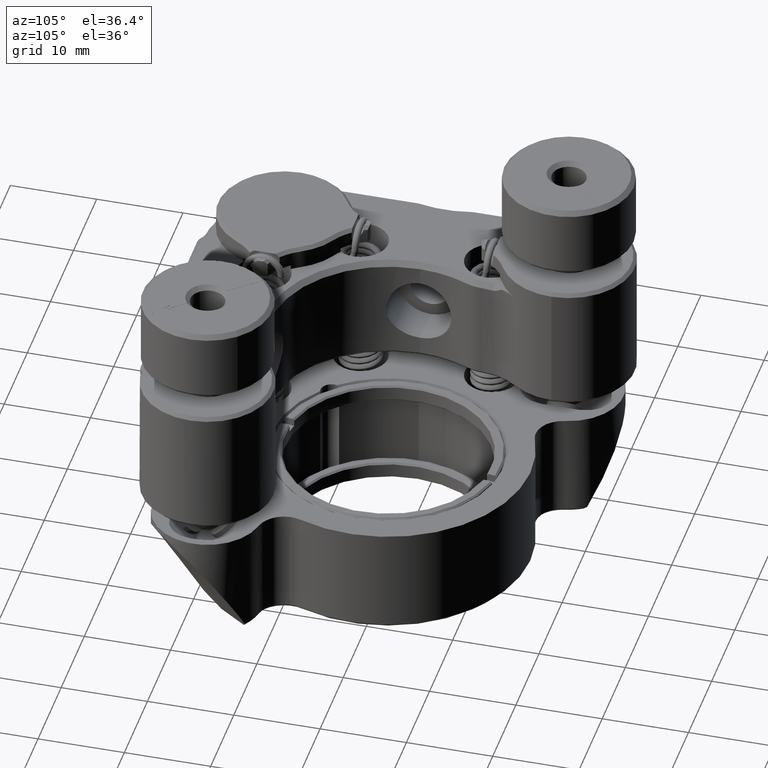
[diagram: clean part render]
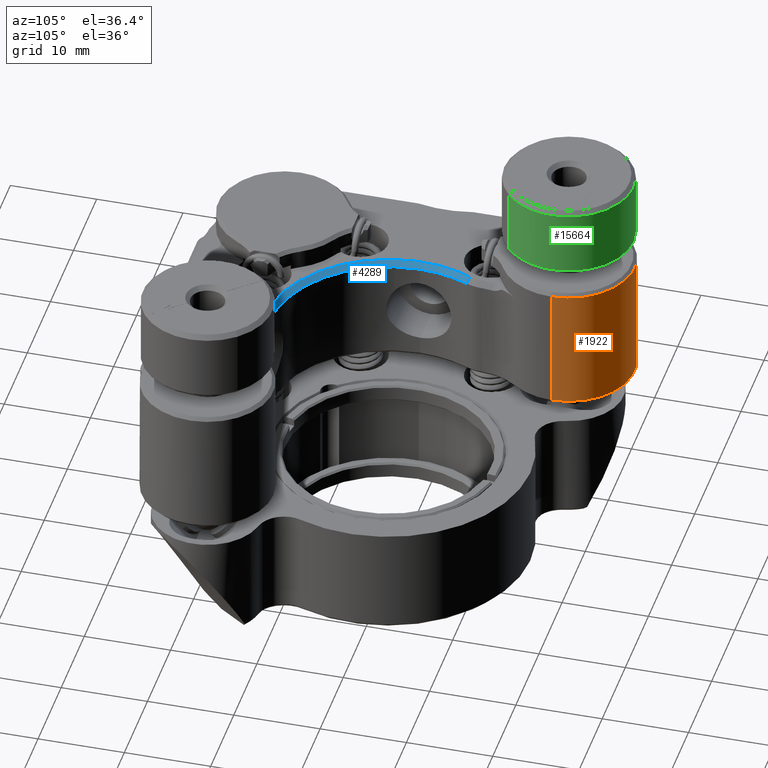
[diagram: same view with three faces highlighted in distinct colors, each labeled with its STEP entity id]
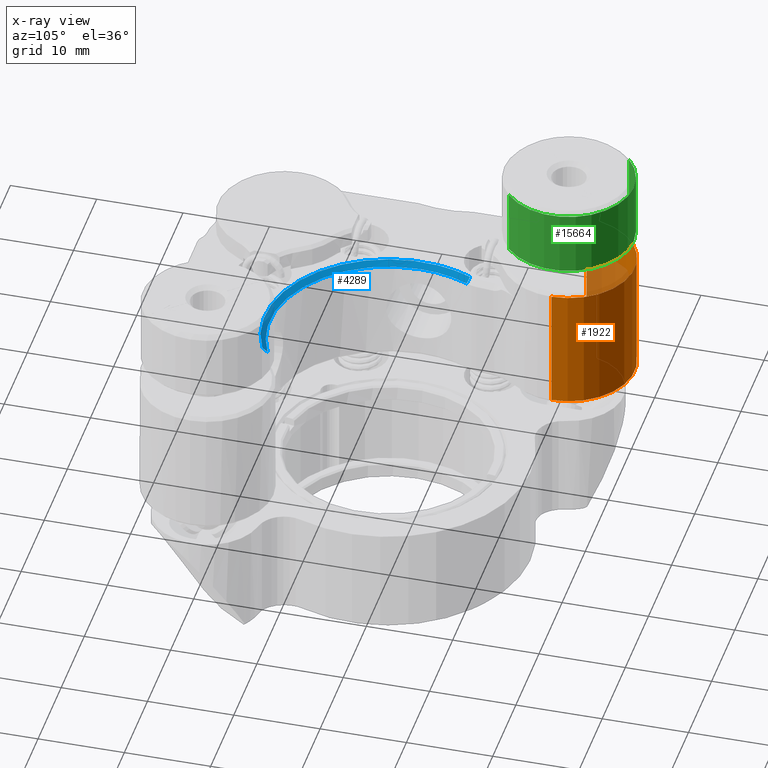
[diagram: x-ray of the same camera — body ghosted, the three highlighted faces saturated]
A machine part, auxiliary view with three faces highlighted in distinct colors.
The next image is the same camera in x-ray (body ghosted, the three faces saturated) — at least one of them is partly hidden behind the body in this view.
Their STEP definitions:

[orange] entity #1922 — the highlighted cylindrical surface (partial cylindrical patch) has radius 7.62 mm, axis along (-0, -0, -1).
#743 = FACE_OUTER_BOUND ( 'NONE', #19678, .T. ) ;
#1100 = EDGE_CURVE ( 'NONE', #8765, #2622, #13598, .T. ) ;
#1161 = CARTESIAN_POINT ( 'NONE',  ( 1.241151733613623298, 45.13409739724845338, 40.91670909685328894 ) ) ;
#1583 = CIRCLE ( 'NONE', #10454, 7.620000000000023199 ) ;
#1922 = ADVANCED_FACE ( 'NONE', ( #743 ), #15541, .T. ) ;
#2622 = VERTEX_POINT ( 'NONE', #3799 ) ;
#2656 = LINE ( 'NONE', #1161, #16758 ) ;
#3021 = ORIENTED_EDGE ( 'NONE', *, *, #21222, .F. ) ;
#3563 = CARTESIAN_POINT ( 'NONE',  ( 1.241151733613804486, 45.13409739724862391, 38.37670909685328979 ) ) ;
#3799 = CARTESIAN_POINT ( 'NONE',  ( 1.241151733613623964, 45.13409739724862391, 26.18470909685332515 ) ) ;
#3997 = AXIS2_PLACEMENT_3D ( 'NONE', #20031, #9986, #5167 ) ;
#4720 = LINE ( 'NONE', #14775, #11318 ) ;
#5019 = DIRECTION ( 'NONE',  ( -0.000000000000000000, -0.000000000000000000, -1.000000000000000000 ) ) ;
#5159 = ORIENTED_EDGE ( 'NONE', *, *, #17664, .T. ) ;
#5167 = DIRECTION ( 'NONE',  ( -1.000000000000000000, -2.094416795142595372E-14, 0.000000000000000000 ) ) ;
#5488 = CARTESIAN_POINT ( 'NONE',  ( 8.861151733613645831, 45.13409739724845338, 40.53570909685331713 ) ) ;
#6305 = LINE ( 'NONE', #19480, #7104 ) ;
#6938 = VERTEX_POINT ( 'NONE', #3563 ) ;
#7104 = VECTOR ( 'NONE', #5019, 1000.000000000000000 ) ;
#7222 = CARTESIAN_POINT ( 'NONE',  ( 16.48115173361366814, 45.13409739724845338, 26.18470909685332515 ) ) ;
#8765 = VERTEX_POINT ( 'NONE', #7222 ) ;
#9986 = DIRECTION ( 'NONE',  ( -0.000000000000000000, -0.000000000000000000, 1.000000000000000000 ) ) ;
#10305 = DIRECTION ( 'NONE',  ( -1.000000000000000000, 0.000000000000000000, 0.000000000000000000 ) ) ;
#10454 = AXIS2_PLACEMENT_3D ( 'NONE', #5488, #20038, #10305 ) ;
#10525 = DIRECTION ( 'NONE',  ( -1.000000000000000000, 0.000000000000000000, 0.000000000000000000 ) ) ;
#10627 = DIRECTION ( 'NONE',  ( -0.000000000000000000, -0.000000000000000000, -1.000000000000000000 ) ) ;
#11318 = VECTOR ( 'NONE', #16163, 1000.000000000000000 ) ;
#12443 = CARTESIAN_POINT ( 'NONE',  ( 8.861151733613645831, 45.13409739724845338, 40.91670909685328894 ) ) ;
#12646 = DIRECTION ( 'NONE',  ( -0.000000000000000000, -0.000000000000000000, -1.000000000000000000 ) ) ;
#12769 = ORIENTED_EDGE ( 'NONE', *, *, #14264, .T. ) ;
#13264 = AXIS2_PLACEMENT_3D ( 'NONE', #12443, #10627, #10525 ) ;
#13598 = CIRCLE ( 'NONE', #3997, 7.620000000000023199 ) ;
#13837 = VERTEX_POINT ( 'NONE', #17910 ) ;
#14264 = EDGE_CURVE ( 'NONE', #14552, #13837, #1583, .T. ) ;
#14552 = VERTEX_POINT ( 'NONE', #20092 ) ;
#14775 = CARTESIAN_POINT ( 'NONE',  ( 1.241151733613623964, 45.13409739724862391, 40.91670909685328894 ) ) ;
#15541 = CYLINDRICAL_SURFACE ( 'NONE', #13264, 7.620000000000023199 ) ;
#16163 = DIRECTION ( 'NONE',  ( -0.000000000000000000, -0.000000000000000000, -1.000000000000000000 ) ) ;
#16758 = VECTOR ( 'NONE', #12646, 1000.000000000000000 ) ;
#17361 = ORIENTED_EDGE ( 'NONE', *, *, #21128, .F. ) ;
#17664 = EDGE_CURVE ( 'NONE', #13837, #8765, #6305, .T. ) ;
#17910 = CARTESIAN_POINT ( 'NONE',  ( 16.48115173361366814, 45.13409739724845338, 40.53570909685331713 ) ) ;
#19480 = CARTESIAN_POINT ( 'NONE',  ( 16.48115173361366814, 45.13409739724845338, 40.91670909685328894 ) ) ;
#19678 = EDGE_LOOP ( 'NONE', ( #12769, #5159, #20123, #3021, #17361 ) ) ;
#20031 = CARTESIAN_POINT ( 'NONE',  ( 8.861151733613645831, 45.13409739724845338, 26.18470909685332515 ) ) ;
#20038 = DIRECTION ( 'NONE',  ( 0.000000000000000000, 0.000000000000000000, -1.000000000000000000 ) ) ;
#20092 = CARTESIAN_POINT ( 'NONE',  ( 1.241151733613623298, 45.13409739724845338, 40.53570909685331713 ) ) ;
#20123 = ORIENTED_EDGE ( 'NONE', *, *, #1100, .T. ) ;
#21128 = EDGE_CURVE ( 'NONE', #14552, #6938, #2656, .T. ) ;
#21222 = EDGE_CURVE ( 'NONE', #6938, #2622, #4720, .T. ) ;

[blue] entity #4289 — the highlighted face is a freeform B-spline surface patch.
#82 = CARTESIAN_POINT ( 'NONE',  ( 31.11760436560300747, 16.17345002793784303, 37.78621635124558509 ) ) ;
#108 = CARTESIAN_POINT ( 'NONE',  ( 13.32398532527555268, 20.89903289220994864, 38.37670909685328979 ) ) ;
#182 = ORIENTED_EDGE ( 'NONE', *, *, #13673, .F. ) ;
#192 = VERTEX_POINT ( 'NONE', #17509 ) ;
#213 = CARTESIAN_POINT ( 'NONE',  ( 16.15448200203933027, 18.45016905904203952, 37.78980254420721963 ) ) ;
#221 = CARTESIAN_POINT ( 'NONE',  ( 19.89970389009817353, 15.39918467721070705, 38.37670909685329690 ) ) ;
#229 = CARTESIAN_POINT ( 'NONE',  ( 22.52522503469345239, 15.95904169531781136, 37.03050909685330794 ) ) ;
#315 = CARTESIAN_POINT ( 'NONE',  ( 30.05521586138815238, 15.72948943202636229, 37.79129901816546777 ) ) ;
#413 = CARTESIAN_POINT ( 'NONE',  ( 19.99124576458130065, 15.99409837834983605, 37.78929535065010015 ) ) ;
#561 = CARTESIAN_POINT ( 'NONE',  ( 11.61439956670863261, 24.69039808305371864, 38.37670909685328269 ) ) ;
#839 = CARTESIAN_POINT ( 'NONE',  ( 11.94067263501937504, 33.53824504982272714, 38.37670909685328979 ) ) ;
#865 = CARTESIAN_POINT ( 'NONE',  ( 12.21264095256108995, 32.52604669978072849, 37.78593860687428219 ) ) ;
#883 = CARTESIAN_POINT ( 'NONE',  ( 30.41001246349899390, 15.24141503093074590, 38.37670909685329690 ) ) ;
#1002 = CARTESIAN_POINT ( 'NONE',  ( 25.44483637994557057, 14.28815705442865003, 38.37670909685321874 ) ) ;
#1089 = VERTEX_POINT ( 'NONE', #13619 ) ;
#1534 = CARTESIAN_POINT ( 'NONE',  ( 28.63952786606404999, 14.67333464788040942, 38.37670909685329690 ) ) ;
#1625 = B_SPLINE_CURVE_WITH_KNOTS ( 'NONE', 3,
 ( #6986, #3760, #4969, #19845, #15026, #8276, #16521, #13526, #1830, #1725, #14923, #14811, #5396, #18135, #213, #9997, #6682, #18239, #3335, #413, #11703, #3548, #10212, #5180, #2037, #10104, #8685, #19742, #11495, #18344, #13423, #20045, #315, #5077, #11600, #16822 ),
 .UNSPECIFIED., .F., .F.,
 ( 4, 2, 2, 2, 2, 2, 2, 2, 2, 2, 2, 2, 2, 2, 2, 2, 2, 4 ),
 ( 0.005911738111146567359, 0.007626873172451893203, 0.009342008233757219046, 0.01105714329506254576, 0.01191471082571521171, 0.01277227835636787767, 0.01620254847897854150, 0.01791768354028386995, 0.01963281860158920186, 0.02134795366289453031, 0.02306308872419986222, 0.02477822378550519761, 0.02563579131615785836, 0.02649335884681052605, 0.02992362896942122111, 0.03163876403072657384, 0.03249633156137923806, 0.03335389909203191616 ),
 .UNSPECIFIED. ) ;
#1725 = CARTESIAN_POINT ( 'NONE',  ( 13.07203006520834343, 22.54603515371357148, 37.78946401752473605 ) ) ;
#1732 = CARTESIAN_POINT ( 'NONE',  ( 27.91659767787238877, 14.54459842377215040, 38.37670909685328269 ) ) ;
#1830 = CARTESIAN_POINT ( 'NONE',  ( 12.82825076109908302, 23.06650172607785265, 37.78940029662025069 ) ) ;
#2037 = CARTESIAN_POINT ( 'NONE',  ( 23.28111236646311255, 15.06523610119133139, 37.78963530745377852 ) ) ;
#2599 = CARTESIAN_POINT ( 'NONE',  ( 31.14244133446541341, 15.54205970111685176, 38.37670909685327558 ) ) ;
#2608 = CARTESIAN_POINT ( 'NONE',  ( 20.73377883949378742, 15.06398501388277467, 38.37670909685328269 ) ) ;
#2784 = B_SPLINE_CURVE_WITH_KNOTS ( 'NONE', 3,
 ( #20064, #10642, #18671, #865, #12023, #18565, #16744, #12249, #13961, #15141 ),
 .UNSPECIFIED., .F., .F.,
 ( 4, 2, 2, 2, 4 ),
 ( 0.000000000000000000, 0.001477934527786641840, 0.002955869055573283680, 0.004433803583359925519, 0.005911738111146567359 ),
 .UNSPECIFIED. ) ;
#2818 = CARTESIAN_POINT ( 'NONE',  ( 19.25306522646453189, 15.66101148430157686, 38.37670909685325427 ) ) ;
#3126 = CARTESIAN_POINT ( 'NONE',  ( 28.97890357575643350, 14.77738601303999211, 38.37670909685329690 ) ) ;
#3136 = CARTESIAN_POINT ( 'NONE',  ( 31.36505517938170584, 15.63730659808386392, 38.37670909685328269 ) ) ;
#3233 = CARTESIAN_POINT ( 'NONE',  ( 28.62699423142782251, 14.69096499421558377, 38.37670909685328979 ) ) ;
#3335 = CARTESIAN_POINT ( 'NONE',  ( 18.95152652628849665, 16.48949086673063746, 37.78960338983291933 ) ) ;
#3347 = CARTESIAN_POINT ( 'NONE',  ( 19.40501334108996545, 15.62288298092781957, 38.37670909685328979 ) ) ;
#3356 = CARTESIAN_POINT ( 'NONE',  ( 25.43749348022391032, 15.63743262300715919, 37.03050909685337899 ) ) ;
#3416 = ORIENTED_EDGE ( 'NONE', *, *, #6265, .T. ) ;
#3454 = CARTESIAN_POINT ( 'NONE',  ( 30.41567160463416997, 16.69476926591651278, 37.03050909685327952 ) ) ;
#3548 = CARTESIAN_POINT ( 'NONE',  ( 21.60895858408603587, 15.42183381139416198, 37.79047589096231974 ) ) ;
#3567 = CARTESIAN_POINT ( 'NONE',  ( 13.44182360228169237, 33.66861726826912360, 37.03050909685329373 ) ) ;
#3760 = CARTESIAN_POINT ( 'NONE',  ( 11.65515173361347223, 28.05235342199904380, 37.78969672782162093 ) ) ;
#4069 = CARTESIAN_POINT ( 'NONE',  ( 11.85861473182862902, 33.31544134893639608, 38.37670909685328979 ) ) ;
#4183 = CARTESIAN_POINT ( 'NONE',  ( 11.44147507252707108, 31.87983471343656205, 38.37670909685328979 ) ) ;
#4240 = CARTESIAN_POINT ( 'NONE',  ( 13.18712514671624092, 21.07532091624347004, 38.37670909685322584 ) ) ;
#4289 = ADVANCED_FACE ( 'NONE', ( #20942 ), #15094, .F. ) ;
#4461 = CARTESIAN_POINT ( 'NONE',  ( 12.38436093444902220, 34.61800084301665237, 38.37670909685328979 ) ) ;
#4551 = EDGE_CURVE ( 'NONE', #17804, #12809, #13038, .T. ) ;
#4763 = CARTESIAN_POINT ( 'NONE',  ( 22.13583710122836834, 14.67310542938333562, 38.37670909685328979 ) ) ;
#4773 = CARTESIAN_POINT ( 'NONE',  ( 30.93980475562975840, 15.45536018209707407, 38.37670909685329690 ) ) ;
#4868 = CARTESIAN_POINT ( 'NONE',  ( 24.30103342469781325, 14.35528927151967338, 38.37670909685328269 ) ) ;
#4969 = CARTESIAN_POINT ( 'NONE',  ( 11.69075675555878924, 27.48025946586029633, 37.78927552075443685 ) ) ;
#4984 = CARTESIAN_POINT ( 'NONE',  ( 13.10164453043849520, 32.87354762832543287, 37.03050909685329373 ) ) ;
#5077 = CARTESIAN_POINT ( 'NONE',  ( 30.59161997979460423, 15.93717174047529639, 37.79655548839284762 ) ) ;
#5086 = CARTESIAN_POINT ( 'NONE',  ( 12.77524609468842520, 21.84568494314090259, 38.37670909685329690 ) ) ;
#5098 = CARTESIAN_POINT ( 'NONE',  ( 13.60665585786354370, 34.05386472451763780, 37.03050909685329373 ) ) ;
#5180 = CARTESIAN_POINT ( 'NONE',  ( 22.99900296467704663, 15.11177297974728440, 37.78985083353141761 ) ) ;
#5396 = CARTESIAN_POINT ( 'NONE',  ( 14.56021463439879327, 20.10557019962340419, 37.79044371043962514 ) ) ;
#5803 = CARTESIAN_POINT ( 'NONE',  ( 11.67418718407332356, 32.75560974581304663, 38.37670909685331111 ) ) ;
#5855 = CARTESIAN_POINT ( 'NONE',  ( 11.39048940095406692, 25.48101563646812195, 38.37670909685328269 ) ) ;
#6067 = CARTESIAN_POINT ( 'NONE',  ( 12.40806582066666408, 22.50601089009946776, 38.37670909685328269 ) ) ;
#6263 = CARTESIAN_POINT ( 'NONE',  ( 30.58043351888250427, 15.30885854565100068, 38.37670909685329690 ) ) ;
#6265 = EDGE_CURVE ( 'NONE', #17978, #12809, #18099, .T. ) ;
#6289 = CARTESIAN_POINT ( 'NONE',  ( 12.35355493102227875, 22.65227286820592312, 38.37670909685330400 ) ) ;
#6370 = CARTESIAN_POINT ( 'NONE',  ( 27.55922645416164940, 14.48479695365101527, 38.37670909685328979 ) ) ;
#6381 = CARTESIAN_POINT ( 'NONE',  ( 18.53454835015309854, 17.58585912890166369, 37.03050909685326531 ) ) ;
#6487 = CARTESIAN_POINT ( 'NONE',  ( 28.33187767364685072, 15.98636402371819720, 37.03050909685330794 ) ) ;
#6682 = CARTESIAN_POINT ( 'NONE',  ( 17.49319924037026297, 17.38173193136052319, 37.79099846591627454 ) ) ;
#6690 = CARTESIAN_POINT ( 'NONE',  ( 12.86354231730621933, 21.68415005227346271, 38.37670909685330400 ) ) ;
#6797 = CARTESIAN_POINT ( 'NONE',  ( 18.91663527836218250, 15.85883428271150208, 38.37670909685330400 ) ) ;
#6808 = CARTESIAN_POINT ( 'NONE',  ( 12.73341836008330397, 31.58482333728182567, 37.03050909685326531 ) ) ;
#6986 = CARTESIAN_POINT ( 'NONE',  ( 11.65515173361346690, 28.62409739724833102, 37.78973989358993890 ) ) ;
#7438 = CARTESIAN_POINT ( 'NONE',  ( 30.38423956325754105, 15.23141819904170369, 38.37670909685328269 ) ) ;
#7550 = CARTESIAN_POINT ( 'NONE',  ( 22.22806997283317187, 14.64343506458896371, 38.37670909685326848 ) ) ;
#7655 = CARTESIAN_POINT ( 'NONE',  ( 11.12184241177793709, 27.06301735297927280, 38.37670909685327558 ) ) ;
#7757 = CARTESIAN_POINT ( 'NONE',  ( 31.36505517938176268, 15.63730659808388523, 38.37670909685328979 ) ) ;
#7766 = CARTESIAN_POINT ( 'NONE',  ( 11.03521139079376390, 28.69778204358052065, 38.37670909685328979 ) ) ;
#7980 = CARTESIAN_POINT ( 'NONE',  ( 14.33291346526690191, 21.78749401378814454, 37.03050909685337899 ) ) ;
#8081 = CARTESIAN_POINT ( 'NONE',  ( 26.47055007258569148, 14.34424125510832759, 38.37670909685328979 ) ) ;
#8162 = CARTESIAN_POINT ( 'NONE',  ( 31.36505517938176268, 15.63730659808388523, 38.37670909685328979 ) ) ;
#8186 = CARTESIAN_POINT ( 'NONE',  ( 14.74154866421119259, 19.02587353099097101, 38.37670909685328979 ) ) ;
#8257 = CARTESIAN_POINT ( 'NONE',  ( 12.38436093444902397, 34.61800084301665237, 38.37670909685328979 ) ) ;
#8276 = CARTESIAN_POINT ( 'NONE',  ( 12.22578934047483656, 24.66772171417339976, 37.79044786745002682 ) ) ;
#8283 = CARTESIAN_POINT ( 'NONE',  ( 16.28853422908613524, 17.47872148643134693, 38.37670909685330400 ) ) ;
#8685 = CARTESIAN_POINT ( 'NONE',  ( 24.13776513953229141, 14.96063491977065496, 37.78941241589672728 ) ) ;
#9000 = CARTESIAN_POINT ( 'NONE',  ( 11.96074622682672839, 33.59106138881092107, 38.37670909685330400 ) ) ;
#9375 = CARTESIAN_POINT ( 'NONE',  ( 11.82691542274763030, 33.31512307659313166, 38.37670909685329690 ) ) ;
#9797 = CARTESIAN_POINT ( 'NONE',  ( 17.45342955377333993, 16.62400746861901268, 38.37670909685329690 ) ) ;
#9997 = CARTESIAN_POINT ( 'NONE',  ( 17.03355112413207806, 17.71812495786230812, 37.79084031616016404 ) ) ;
#10104 = CARTESIAN_POINT ( 'NONE',  ( 23.84997606392560598, 14.98969206427173795, 37.78938955094373142 ) ) ;
#10124 = CARTESIAN_POINT ( 'NONE',  ( 12.38448695937214872, 28.69043914385888172, 37.03050909685330083 ) ) ;
#10212 = CARTESIAN_POINT ( 'NONE',  ( 22.15951765267804063, 15.27720853455000416, 37.79036792761987584 ) ) ;
#10405 = CARTESIAN_POINT ( 'NONE',  ( 11.96478324836953355, 33.60161499620866010, 38.37670909685328979 ) ) ;
#10642 = CARTESIAN_POINT ( 'NONE',  ( 12.70906880962346364, 33.92012334591974820, 37.80343088759907744 ) ) ;
#10728 = CARTESIAN_POINT ( 'NONE',  ( 12.05561866692576167, 33.83810532993024367, 38.37670909685329690 ) ) ;
#10991 = CARTESIAN_POINT ( 'NONE',  ( 10.99774249357643363, 29.00008945594158050, 38.37670909685328269 ) ) ;
#10998 = CARTESIAN_POINT ( 'NONE',  ( 14.13115380398944865, 19.72948060441478901, 38.37670909685328979 ) ) ;
#11342 = CARTESIAN_POINT ( 'NONE',  ( 31.36505517938176268, 15.63730659808388523, 38.37670909685328979 ) ) ;
#11495 = CARTESIAN_POINT ( 'NONE',  ( 26.70995441532875248, 14.92570150315654587, 37.78978457217267817 ) ) ;
#11503 = CARTESIAN_POINT ( 'NONE',  ( 29.67614439951547212, 14.97670351789416721, 38.37670909685329690 ) ) ;
#11514 = CARTESIAN_POINT ( 'NONE',  ( 15.19029148931452333, 20.56515786151711467, 37.03050909685329373 ) ) ;
#11600 = CARTESIAN_POINT ( 'NONE',  ( 30.85680980241815519, 16.04953699024291325, 37.79755667033390409 ) ) ;
#11620 = CARTESIAN_POINT ( 'NONE',  ( 13.62824438442381592, 23.08174061746617767, 37.03050909685330083 ) ) ;
#11703 = CARTESIAN_POINT ( 'NONE',  ( 20.52602140692698285, 15.77969888263717380, 37.79000419745793238 ) ) ;
#12000 = CARTESIAN_POINT ( 'NONE',  ( 11.52784288824395986, 32.23148331177023351, 38.37670909685329690 ) ) ;
#12023 = CARTESIAN_POINT ( 'NONE',  ( 12.08101568698744366, 32.05119749222954795, 37.78916365408360178 ) ) ;
#12110 = CARTESIAN_POINT ( 'NONE',  ( 11.75484474074690411, 33.01592660146320668, 38.37670909685328979 ) ) ;
#12181 = B_SPLINE_CURVE_WITH_KNOTS ( 'NONE', 1,
 ( #82, #8162 ),
 .UNSPECIFIED., .F., .F.,
 ( 2, 2 ),
 ( 0.5613632850930729834, 1.000000000000000000 ),
 .UNSPECIFIED. ) ;
#12249 = CARTESIAN_POINT ( 'NONE',  ( 11.68161865503068064, 29.60918257495072581, 37.78947344099801597 ) ) ;
#12488 = CARTESIAN_POINT ( 'NONE',  ( 23.81007168934432627, 14.37478807541282144, 38.37670909685327558 ) ) ;
#12592 = CARTESIAN_POINT ( 'NONE',  ( 11.35502292562923721, 25.75232571216070454, 38.37670909685328979 ) ) ;
#12800 = CARTESIAN_POINT ( 'NONE',  ( 30.46381307168684671, 15.26247476947826343, 38.37670909685328979 ) ) ;
#12809 = VERTEX_POINT ( 'NONE', #14026 ) ;
#12812 = CARTESIAN_POINT ( 'NONE',  ( 12.20241451846223057, 34.19275041926469783, 38.37670909685328979 ) ) ;
#12918 = CARTESIAN_POINT ( 'NONE',  ( 13.08774670285252739, 24.42195477011773619, 37.03050909685333636 ) ) ;
#13038 = B_SPLINE_CURVE_WITH_KNOTS ( 'NONE', 3,
 ( #7757, #2599, #19223, #6263, #12800, #883, #7438, #13978, #20507, #15687, #19442, #11503, #3126, #3233, #1732, #6370, #8081, #13116, #4868, #16103, #16530, #4763, #18039, #221, #3347, #17933, #6797, #9797, #8283, #8186, #14820, #108, #13227, #6690, #5086, #6289, #19253, #561, #15794, #12592, #19125, #10991, #15897, #18644, #4183, #12000, #20351, #5803, #12110, #4069, #16817, #839, #18972, #9000, #10405, #17038, #10728, #15225, #17248 ),
 .UNSPECIFIED., .F., .F.,
 ( 4, 1, 1, 1, 1, 1, 2, 2, 2, 2, 2, 1, 2, 2, 1, 1, 2, 2, 2, 1, 1, 2, 2, 1, 2, 2, 2, 1, 2, 2, 1, 1, 1, 1, 1, 2, 2, 4 ),
 ( 0.000000000000000000, 0.01562500000001087672, 0.02343750000001634456, 0.02734375000001924155, 0.02929687500002050443, 0.03027343750002089995, 0.03076171875002109771, 0.03125000000002129547, 0.06250000000002060851, 0.09375000000001991463, 0.1250000000000192346, 0.1875000000000178746, 0.2187500000000170697, 0.2500000000000162648, 0.3125000000000146549, 0.3437500000000139888, 0.3593750000000136557, 0.3750000000000132672, 0.5000000000000096589, 0.5625000000000078826, 0.5937500000000068834, 0.6093750000000063283, 0.6250000000000057732, 0.6875000000000034417, 0.7187500000000021094, 0.7500000000000006661, 0.8749999999999955591, 0.9062499999999944489, 0.9218749999999938938, 0.9374999999999933387, 0.9531249999999927836, 0.9609374999999927836, 0.9648437499999925615, 0.9667968749999924505, 0.9677734374999924505, 0.9682617187499921174, 0.9687499999999917843, 1.000000000000000000 ),
 .UNSPECIFIED. ) ;
#13116 = CARTESIAN_POINT ( 'NONE',  ( 25.38411258108517998, 14.28715967470755643, 38.37670909685328979 ) ) ;
#13227 = CARTESIAN_POINT ( 'NONE',  ( 13.04442159254060307, 21.36758729914661359, 38.37670909685330400 ) ) ;
#13314 = CARTESIAN_POINT ( 'NONE',  ( 12.91758081580531758, 34.37189935931374407, 37.78943626234246267 ) ) ;
#13342 = CARTESIAN_POINT ( 'NONE',  ( 16.18799403821138227, 19.44093970184630749, 37.03050909685332215 ) ) ;
#13423 = CARTESIAN_POINT ( 'NONE',  ( 28.96131491744914399, 15.37380230283167748, 37.78673805870843694 ) ) ;
#13526 = CARTESIAN_POINT ( 'NONE',  ( 12.71506374171096532, 23.32942395552880654, 37.78957710527797076 ) ) ;
#13619 = CARTESIAN_POINT ( 'NONE',  ( 31.11760436560300747, 16.17345002793784303, 37.78621635124558509 ) ) ;
#13673 = EDGE_CURVE ( 'NONE', #1089, #17804, #12181, .T. ) ;
#13961 = CARTESIAN_POINT ( 'NONE',  ( 11.65515173361347223, 29.11677006259045797, 37.78977708959909165 ) ) ;
#13978 = CARTESIAN_POINT ( 'NONE',  ( 30.37343562112246786, 15.22724806481454429, 38.37670909685329690 ) ) ;
#14026 = CARTESIAN_POINT ( 'NONE',  ( 12.38436093444902397, 34.61800084301665237, 38.37670909685328979 ) ) ;
#14247 = ORIENTED_EDGE ( 'NONE', *, *, #20399, .F. ) ;
#14302 = CARTESIAN_POINT ( 'NONE',  ( 11.81103935024788143, 23.98672450312874105, 38.37670909685325427 ) ) ;
#14516 = CARTESIAN_POINT ( 'NONE',  ( 17.31221219788224630, 18.44323715294953558, 37.03050909685335768 ) ) ;
#14619 = CARTESIAN_POINT ( 'NONE',  ( 30.06217741295818513, 15.07986108638248979, 38.37670909685332532 ) ) ;
#14722 = CARTESIAN_POINT ( 'NONE',  ( 29.62060196469049345, 16.35459019407326409, 37.03050909685323688 ) ) ;
#14811 = CARTESIAN_POINT ( 'NONE',  ( 13.89293485320481913, 21.02807269471516349, 37.79106387296549485 ) ) ;
#14820 = CARTESIAN_POINT ( 'NONE',  ( 14.03401444084066974, 19.84976733529955695, 38.37670909685328979 ) ) ;
#14923 = CARTESIAN_POINT ( 'NONE',  ( 13.20301278310946991, 22.28788596150640089, 37.78972053208902793 ) ) ;
#15026 = CARTESIAN_POINT ( 'NONE',  ( 11.94288429263145446, 25.77188868713747283, 37.79023588698196079 ) ) ;
#15094 = B_SPLINE_SURFACE_WITH_KNOTS ( 'NONE', 1, 3, ( 
 ( #4461, #12812, #9375, #15800, #20518, #7766, #7655, #5855, #14302, #6067, #4240, #10998, #17302, #15696, #17523, #2818, #2608, #7550, #12488, #1002, #20626, #1534, #14619, #4773, #3136 ),
 ( #5098, #3567, #4984, #6808, #18257, #10124, #16648, #17836, #12918, #11620, #7980, #11514, #13342, #14516, #6381, #18152, #19542, #229, #19450, #3356, #16221, #6487, #14722, #3454, #18050 ) ),
 .UNSPECIFIED., .F., .F., .F.,
 ( 2, 2 ),
 ( 4, 1, 1, 1, 1, 1, 1, 1, 1, 1, 1, 1, 1, 1, 1, 1, 1, 1, 1, 1, 1, 1, 4 ),
 ( 0.000000000000000000, 1.000000000000000000 ),
 ( 0.000000000000000000, 0.03982447666946239972, 0.08218933522590329832, 0.1271469608448657640, 0.1746665542464924392, 0.2245396789897321776, 0.2678365358692267884, 0.3125147355520390136, 0.3582891668140400498, 0.4049945860116121454, 0.4523698004075304424, 0.4999999999999997780, 0.5476301995924692800, 0.5950054139883876880, 0.6417108331859597836, 0.6874852644479608754, 0.7321634641307730451, 0.7754603210102677391, 0.8253334457535075330, 0.8728530391551344580, 0.9178106647740966739, 0.9601755233305375725, 1.000000000000000000 ),
 .UNSPECIFIED. ) ;
#15141 = CARTESIAN_POINT ( 'NONE',  ( 11.65515173361346690, 28.62409739724833102, 37.78973989358993890 ) ) ;
#15225 = CARTESIAN_POINT ( 'NONE',  ( 12.19412862448400681, 34.17338430119600901, 38.37670909685329690 ) ) ;
#15687 = CARTESIAN_POINT ( 'NONE',  ( 30.36450516560745072, 15.22380687869121907, 38.37670909685329690 ) ) ;
#15696 = CARTESIAN_POINT ( 'NONE',  ( 16.47653494077985670, 17.38409946762437031, 38.37670909685323295 ) ) ;
#15794 = CARTESIAN_POINT ( 'NONE',  ( 11.43299145205291723, 25.39413367721532211, 38.37670909685328979 ) ) ;
#15800 = CARTESIAN_POINT ( 'NONE',  ( 11.42038898424555704, 31.89247352969898941, 38.37670909685329690 ) ) ;
#15897 = CARTESIAN_POINT ( 'NONE',  ( 11.23181361473330497, 30.81157762427039870, 38.37670909685331111 ) ) ;
#16103 = CARTESIAN_POINT ( 'NONE',  ( 23.57972695046473532, 14.42853370877505448, 38.37670909685328979 ) ) ;
#16221 = CARTESIAN_POINT ( 'NONE',  ( 26.93453332186124882, 15.73371616660942962, 37.03050909685328662 ) ) ;
#16293 = CARTESIAN_POINT ( 'NONE',  ( 12.91758081580531758, 34.37189935931374407, 37.78943626234246267 ) ) ;
#16521 = CARTESIAN_POINT ( 'NONE',  ( 12.40108860708188310, 24.12609618040760395, 37.79015906765646093 ) ) ;
#16530 = CARTESIAN_POINT ( 'NONE',  ( 23.22139133128986543, 14.47872009296042961, 38.37670909685328979 ) ) ;
#16648 = CARTESIAN_POINT ( 'NONE',  ( 12.46303034732274639, 27.20964217655488682, 37.03050909685330794 ) ) ;
#16686 = EDGE_CURVE ( 'NONE', #192, #1089, #1625, .T. ) ;
#16744 = CARTESIAN_POINT ( 'NONE',  ( 11.78824916751273300, 30.59347968536700435, 37.78960589996469821 ) ) ;
#16817 = CARTESIAN_POINT ( 'NONE',  ( 11.91291710444346208, 33.46415165997667174, 38.37670909685328269 ) ) ;
#16822 = CARTESIAN_POINT ( 'NONE',  ( 31.11760436560300747, 16.17345002793784303, 37.78621635124558509 ) ) ;
#17038 = CARTESIAN_POINT ( 'NONE',  ( 11.96747500544379150, 33.60863359483329305, 38.37670909685330400 ) ) ;
#17248 = CARTESIAN_POINT ( 'NONE',  ( 12.38436093444902397, 34.61800084301665237, 38.37670909685328979 ) ) ;
#17302 = CARTESIAN_POINT ( 'NONE',  ( 15.23383101222187186, 18.48677667585679885, 38.37670909685326137 ) ) ;
#17509 = CARTESIAN_POINT ( 'NONE',  ( 11.65515173361346690, 28.62409739724833102, 37.78973989358993890 ) ) ;
#17523 = CARTESIAN_POINT ( 'NONE',  ( 17.82237525260854127, 16.44007081035115547, 38.37670909685331821 ) ) ;
#17804 = VERTEX_POINT ( 'NONE', #11342 ) ;
#17836 = CARTESIAN_POINT ( 'NONE',  ( 12.70609603168290214, 25.77817069832840602, 37.03050909685330794 ) ) ;
#17933 = CARTESIAN_POINT ( 'NONE',  ( 19.07768561949591302, 15.77850265189336199, 38.37670909685328979 ) ) ;
#17978 = VERTEX_POINT ( 'NONE', #13314 ) ;
#18039 = CARTESIAN_POINT ( 'NONE',  ( 21.07987460410381786, 14.94534038765587880, 38.37670909685328979 ) ) ;
#18050 = CARTESIAN_POINT ( 'NONE',  ( 30.80091906088267351, 16.85960152149839075, 37.03050909685330083 ) ) ;
#18099 = B_SPLINE_CURVE_WITH_KNOTS ( 'NONE', 1,
 ( #16293, #8257 ),
 .UNSPECIFIED., .F., .F.,
 ( 2, 2 ),
 ( 0.5637551370443996124, 1.000000000000000000 ),
 .UNSPECIFIED. ) ;
#18135 = CARTESIAN_POINT ( 'NONE',  ( 15.73269756911536632, 18.84876569117145806, 37.78921712596342530 ) ) ;
#18152 = CARTESIAN_POINT ( 'NONE',  ( 19.82879495383126667, 16.88119004805879797, 37.03050909685335057 ) ) ;
#18239 = CARTESIAN_POINT ( 'NONE',  ( 18.45218852594400616, 16.76741721748048164, 37.79046400730209854 ) ) ;
#18257 = CARTESIAN_POINT ( 'NONE',  ( 12.48077050297469981, 30.18747898549618824, 37.03050909685335768 ) ) ;
#18344 = CARTESIAN_POINT ( 'NONE',  ( 28.39870092528397194, 15.23417400071708450, 37.79009391128258244 ) ) ;
#18361 = ORIENTED_EDGE ( 'NONE', *, *, #16686, .F. ) ;
#18565 = CARTESIAN_POINT ( 'NONE',  ( 11.86889275405132160, 31.08615622020160885, 37.79038091637367103 ) ) ;
#18644 = CARTESIAN_POINT ( 'NONE',  ( 11.32181174682311919, 31.34969955710297640, 38.37670909685328979 ) ) ;
#18671 = CARTESIAN_POINT ( 'NONE',  ( 12.52666897254813172, 33.46050897354123066, 37.79090553353230320 ) ) ;
#18714 = ORIENTED_EDGE ( 'NONE', *, *, #4551, .F. ) ;
#18972 = CARTESIAN_POINT ( 'NONE',  ( 11.95470148637445362, 33.57522630332723423, 38.37670909685329690 ) ) ;
#19125 = CARTESIAN_POINT ( 'NONE',  ( 11.03275600481557106, 27.55312507587875359, 38.37670909685329690 ) ) ;
#19223 = CARTESIAN_POINT ( 'NONE',  ( 30.84975133655355251, 15.41868329430725915, 38.37670909685329690 ) ) ;
#19253 = CARTESIAN_POINT ( 'NONE',  ( 11.92549794276149910, 23.64941100533870966, 38.37670909685328269 ) ) ;
#19442 = CARTESIAN_POINT ( 'NONE',  ( 30.02085666411165477, 15.09184691535541134, 38.37670909685329690 ) ) ;
#19450 = CARTESIAN_POINT ( 'NONE',  ( 23.95669651291993318, 15.71597601095765029, 37.03050909685332215 ) ) ;
#19542 = CARTESIAN_POINT ( 'NONE',  ( 21.16900910648275769, 16.34069236648737800, 37.03050909685330794 ) ) ;
#19742 = CARTESIAN_POINT ( 'NONE',  ( 25.57302855679138176, 14.86137253729923557, 37.78981726644603611 ) ) ;
#19845 = CARTESIAN_POINT ( 'NONE',  ( 11.83515467200623128, 26.33535199484423117, 37.78967907733692044 ) ) ;
#20045 = CARTESIAN_POINT ( 'NONE',  ( 29.78400128240307154, 15.63417250125028346, 37.78809276795244187 ) ) ;
#20064 = CARTESIAN_POINT ( 'NONE',  ( 12.91758081580531758, 34.37189935931374407, 37.78943626234246267 ) ) ;
#20163 = EDGE_LOOP ( 'NONE', ( #3416, #18714, #182, #18361, #14247 ) ) ;
#20351 = CARTESIAN_POINT ( 'NONE',  ( 11.57401101959112211, 32.40532955672875914, 38.37670909685328979 ) ) ;
#20399 = EDGE_CURVE ( 'NONE', #17978, #192, #2784, .T. ) ;
#20507 = CARTESIAN_POINT ( 'NONE',  ( 30.36628667893015532, 15.22449335806238579, 38.37670909685330400 ) ) ;
#20518 = CARTESIAN_POINT ( 'NONE',  ( 11.14140184896231034, 30.34918086200323017, 38.37670909685322584 ) ) ;
#20626 = CARTESIAN_POINT ( 'NONE',  ( 27.09623519836827299, 14.39434751259716627, 38.37670909685329690 ) ) ;
#20942 = FACE_OUTER_BOUND ( 'NONE', #20163, .T. ) ;

[green] entity #15664 — the highlighted cylindrical surface (partial cylindrical patch) has radius 7.5 mm, axis along (0, 0, 1).
#54 = VERTEX_POINT ( 'NONE', #11067 ) ;
#79 = ORIENTED_EDGE ( 'NONE', *, *, #10539, .T. ) ;
#1621 = FACE_OUTER_BOUND ( 'NONE', #16825, .T. ) ;
#2396 = DIRECTION ( 'NONE',  ( -1.000000000000000000, -0.000000000000000000, -0.000000000000000000 ) ) ;
#3368 = LINE ( 'NONE', #16555, #19982 ) ;
#3440 = CARTESIAN_POINT ( 'NONE',  ( 7.999999999999998224, 0.000000000000000000, 0.000000000000000000 ) ) ;
#3935 = DIRECTION ( 'NONE',  ( 0.000000000000000000, 0.000000000000000000, -1.000000000000000000 ) ) ;
#4968 = CIRCLE ( 'NONE', #11135, 7.500000000000000000 ) ;
#5368 = CIRCLE ( 'NONE', #18362, 7.500000000000000000 ) ;
#5677 = CARTESIAN_POINT ( 'NONE',  ( 7.999999999999998224, 9.184850993605147944E-16, -7.500000000000000000 ) ) ;
#8386 = DIRECTION ( 'NONE',  ( -1.000000000000000000, 0.000000000000000000, 0.000000000000000000 ) ) ;
#8586 = EDGE_CURVE ( 'NONE', #9259, #54, #3368, .T. ) ;
#8961 = ORIENTED_EDGE ( 'NONE', *, *, #15932, .T. ) ;
#9064 = LINE ( 'NONE', #10570, #13824 ) ;
#9259 = VERTEX_POINT ( 'NONE', #5677 ) ;
#9530 = EDGE_CURVE ( 'NONE', #20751, #18653, #9064, .T. ) ;
#9999 = DIRECTION ( 'NONE',  ( 0.000000000000000000, 0.000000000000000000, -1.000000000000000000 ) ) ;
#10430 = ORIENTED_EDGE ( 'NONE', *, *, #8586, .T. ) ;
#10539 = EDGE_CURVE ( 'NONE', #20751, #9259, #4968, .T. ) ;
#10570 = CARTESIAN_POINT ( 'NONE',  ( 8.500000000000000000, 0.000000000000000000, 7.500000000000000000 ) ) ;
#11067 = CARTESIAN_POINT ( 'NONE',  ( 0.5000000000000073275, 9.184850993605147944E-16, -7.500000000000000000 ) ) ;
#11135 = AXIS2_PLACEMENT_3D ( 'NONE', #3440, #8386, #9999 ) ;
#11802 = DIRECTION ( 'NONE',  ( 0.000000000000000000, 0.000000000000000000, 1.000000000000000000 ) ) ;
#12871 = AXIS2_PLACEMENT_3D ( 'NONE', #20041, #14700, #11802 ) ;
#13824 = VECTOR ( 'NONE', #2396, 1000.000000000000000 ) ;
#14700 = DIRECTION ( 'NONE',  ( -1.000000000000000000, -0.000000000000000000, -0.000000000000000000 ) ) ;
#15505 = CARTESIAN_POINT ( 'NONE',  ( 0.5000000000000073275, 0.000000000000000000, 0.000000000000000000 ) ) ;
#15664 = ADVANCED_FACE ( 'NONE', ( #1621 ), #16307, .T. ) ;
#15932 = EDGE_CURVE ( 'NONE', #54, #18653, #5368, .T. ) ;
#16191 = CARTESIAN_POINT ( 'NONE',  ( 7.999999999999998224, 0.000000000000000000, 7.500000000000000000 ) ) ;
#16307 = CYLINDRICAL_SURFACE ( 'NONE', #12871, 7.500000000000000000 ) ;
#16555 = CARTESIAN_POINT ( 'NONE',  ( 8.500000000000000000, 9.184850993605147944E-16, -7.500000000000000000 ) ) ;
#16765 = CARTESIAN_POINT ( 'NONE',  ( 0.5000000000000073275, 0.000000000000000000, 7.500000000000000000 ) ) ;
#16825 = EDGE_LOOP ( 'NONE', ( #79, #10430, #8961, #16909 ) ) ;
#16909 = ORIENTED_EDGE ( 'NONE', *, *, #9530, .F. ) ;
#18362 = AXIS2_PLACEMENT_3D ( 'NONE', #15505, #20438, #3935 ) ;
#18653 = VERTEX_POINT ( 'NONE', #16765 ) ;
#19772 = DIRECTION ( 'NONE',  ( -1.000000000000000000, -0.000000000000000000, -0.000000000000000000 ) ) ;
#19982 = VECTOR ( 'NONE', #19772, 1000.000000000000000 ) ;
#20041 = CARTESIAN_POINT ( 'NONE',  ( 8.500000000000000000, 0.000000000000000000, 0.000000000000000000 ) ) ;
#20438 = DIRECTION ( 'NONE',  ( 1.000000000000000000, -0.000000000000000000, -0.000000000000000000 ) ) ;
#20751 = VERTEX_POINT ( 'NONE', #16191 ) ;